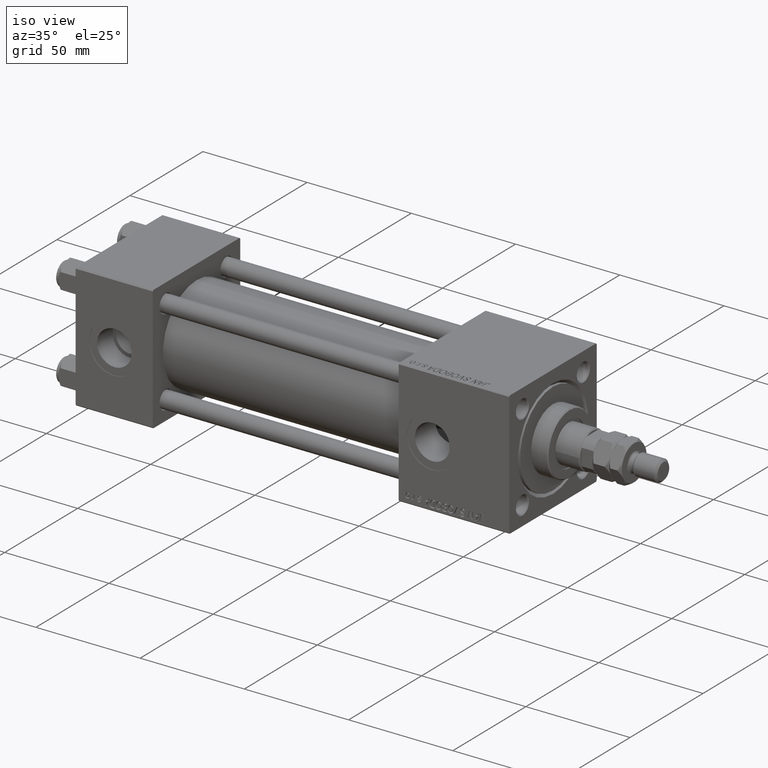
[diagram: clean part render]
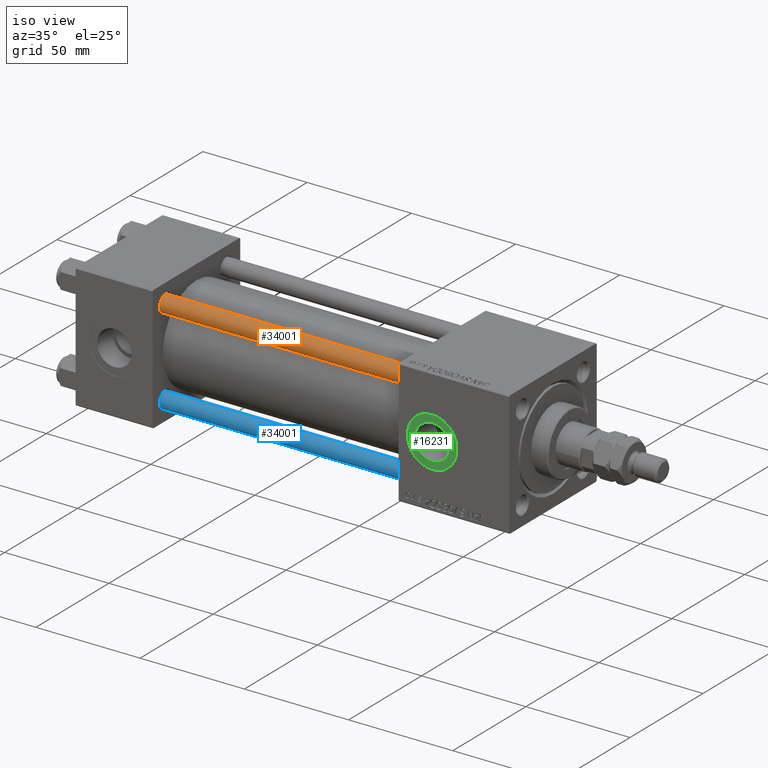
[diagram: same view with three faces highlighted in distinct colors, each labeled with its STEP entity id]
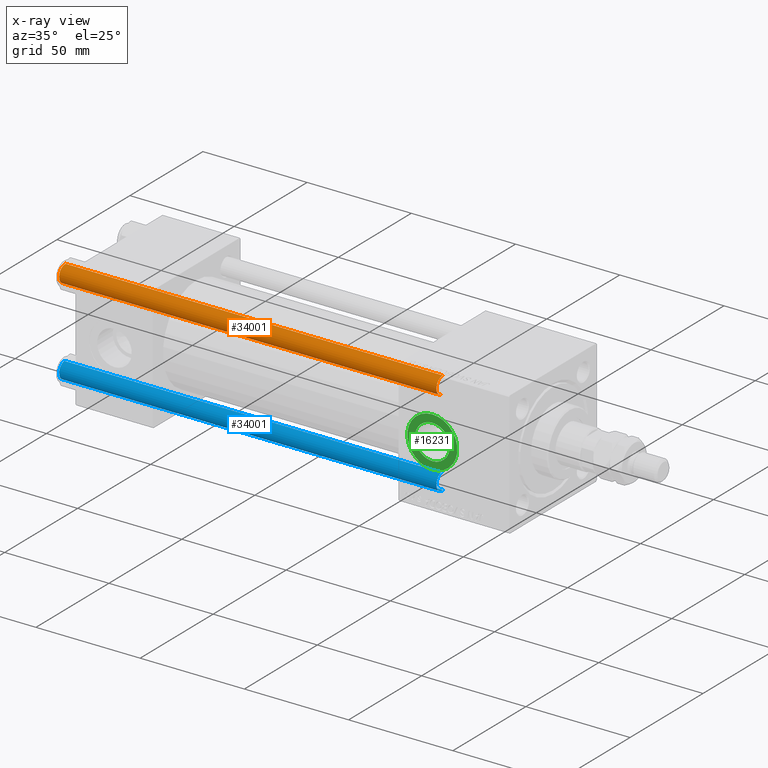
[diagram: x-ray of the same camera — body ghosted, the three highlighted faces saturated]
A machine part, iso view with three faces highlighted in distinct colors.
The next image is the same camera in x-ray (body ghosted, the three faces saturated) — at least one of them is partly hidden behind the body in this view.
Their STEP definitions:

[orange] entity #34001 — the highlighted cylindrical surface (edge-blend (fillet) strip) has radius 4 mm, axis along (1, 0, -0).
#644 = AXIS2_PLACEMENT_3D ( 'NONE', #18534, #1657, #47669 ) ;
#1657 = DIRECTION ( 'NONE',  ( -0.000000000000000000, -0.000000000000000000, -1.000000000000000000 ) ) ;
#2438 = DIRECTION ( 'NONE',  ( -0.000000000000000000, -0.000000000000000000, -1.000000000000000000 ) ) ;
#2920 = EDGE_LOOP ( 'NONE', ( #27998, #35721, #41692, #16912 ) ) ;
#4100 = LINE ( 'NONE', #50658, #37517 ) ;
#7189 = DIRECTION ( 'NONE',  ( 0.000000000000000000, 0.000000000000000000, -1.000000000000000000 ) ) ;
#13838 = CARTESIAN_POINT ( 'NONE',  ( 0.000000000000000000, 0.000000000000000000, 0.4999999999999726885 ) ) ;
#15952 = CARTESIAN_POINT ( 'NONE',  ( -4.000000000000000000, 0.000000000000000000, 181.5000000000000284 ) ) ;
#16912 = ORIENTED_EDGE ( 'NONE', *, *, #46471, .F. ) ;
#18534 = CARTESIAN_POINT ( 'NONE',  ( 0.000000000000000000, 0.000000000000000000, 182.0000000000000000 ) ) ;
#19713 = DIRECTION ( 'NONE',  ( 1.000000000000000000, 0.000000000000000000, 0.000000000000000000 ) ) ;
#22713 = AXIS2_PLACEMENT_3D ( 'NONE', #13838, #46268, #46803 ) ;
#23755 = VERTEX_POINT ( 'NONE', #15952 ) ;
#26812 = AXIS2_PLACEMENT_3D ( 'NONE', #32534, #7189, #19713 ) ;
#27998 = ORIENTED_EDGE ( 'NONE', *, *, #36018, .T. ) ;
#29486 = CARTESIAN_POINT ( 'NONE',  ( 4.000000000000000000, 4.898587196589412829E-16, 0.4999999999999726885 ) ) ;
#29993 = CARTESIAN_POINT ( 'NONE',  ( -4.000000000000000000, 0.000000000000000000, 0.4999999999999726885 ) ) ;
#32534 = CARTESIAN_POINT ( 'NONE',  ( 0.000000000000000000, 0.000000000000000000, 181.5000000000000284 ) ) ;
#32923 = VECTOR ( 'NONE', #2438, 1000.000000000000000 ) ;
#33997 = CIRCLE ( 'NONE', #22713, 4.000000000000000000 ) ;
#34001 = ADVANCED_FACE ( 'NONE', ( #34620 ), #51485, .T. ) ;
#34620 = FACE_OUTER_BOUND ( 'NONE', #2920, .T. ) ;
#35703 = EDGE_CURVE ( 'NONE', #40337, #46805, #35929, .T. ) ;
#35721 = ORIENTED_EDGE ( 'NONE', *, *, #35703, .T. ) ;
#35929 = LINE ( 'NONE', #52256, #32923 ) ;
#36018 = EDGE_CURVE ( 'NONE', #23755, #40337, #36367, .T. ) ;
#36367 = CIRCLE ( 'NONE', #26812, 4.000000000000000000 ) ;
#36689 = VERTEX_POINT ( 'NONE', #29993 ) ;
#37517 = VECTOR ( 'NONE', #37865, 1000.000000000000000 ) ;
#37800 = CARTESIAN_POINT ( 'NONE',  ( 4.000000000000000000, 4.898587196589412829E-16, 181.5000000000000284 ) ) ;
#37865 = DIRECTION ( 'NONE',  ( -0.000000000000000000, -0.000000000000000000, -1.000000000000000000 ) ) ;
#40337 = VERTEX_POINT ( 'NONE', #37800 ) ;
#41692 = ORIENTED_EDGE ( 'NONE', *, *, #51565, .T. ) ;
#46268 = DIRECTION ( 'NONE',  ( -0.000000000000000000, -0.000000000000000000, 1.000000000000000000 ) ) ;
#46471 = EDGE_CURVE ( 'NONE', #23755, #36689, #4100, .T. ) ;
#46803 = DIRECTION ( 'NONE',  ( 1.000000000000000000, 0.000000000000000000, 0.000000000000000000 ) ) ;
#46805 = VERTEX_POINT ( 'NONE', #29486 ) ;
#47669 = DIRECTION ( 'NONE',  ( -1.000000000000000000, 0.000000000000000000, 0.000000000000000000 ) ) ;
#50658 = CARTESIAN_POINT ( 'NONE',  ( -4.000000000000000000, 0.000000000000000000, 182.0000000000000000 ) ) ;
#51485 = CYLINDRICAL_SURFACE ( 'NONE', #644, 4.000000000000000000 ) ;
#51565 = EDGE_CURVE ( 'NONE', #46805, #36689, #33997, .T. ) ;
#52256 = CARTESIAN_POINT ( 'NONE',  ( 4.000000000000000000, 4.898587196589412829E-16, 182.0000000000000000 ) ) ;

[blue] entity #34001 — the highlighted cylindrical surface (edge-blend (fillet) strip) has radius 4 mm, axis along (-1, -0, -0).
#644 = AXIS2_PLACEMENT_3D ( 'NONE', #18534, #1657, #47669 ) ;
#1657 = DIRECTION ( 'NONE',  ( -0.000000000000000000, -0.000000000000000000, -1.000000000000000000 ) ) ;
#2438 = DIRECTION ( 'NONE',  ( -0.000000000000000000, -0.000000000000000000, -1.000000000000000000 ) ) ;
#2920 = EDGE_LOOP ( 'NONE', ( #27998, #35721, #41692, #16912 ) ) ;
#4100 = LINE ( 'NONE', #50658, #37517 ) ;
#7189 = DIRECTION ( 'NONE',  ( 0.000000000000000000, 0.000000000000000000, -1.000000000000000000 ) ) ;
#13838 = CARTESIAN_POINT ( 'NONE',  ( 0.000000000000000000, 0.000000000000000000, 0.4999999999999726885 ) ) ;
#15952 = CARTESIAN_POINT ( 'NONE',  ( -4.000000000000000000, 0.000000000000000000, 181.5000000000000284 ) ) ;
#16912 = ORIENTED_EDGE ( 'NONE', *, *, #46471, .F. ) ;
#18534 = CARTESIAN_POINT ( 'NONE',  ( 0.000000000000000000, 0.000000000000000000, 182.0000000000000000 ) ) ;
#19713 = DIRECTION ( 'NONE',  ( 1.000000000000000000, 0.000000000000000000, 0.000000000000000000 ) ) ;
#22713 = AXIS2_PLACEMENT_3D ( 'NONE', #13838, #46268, #46803 ) ;
#23755 = VERTEX_POINT ( 'NONE', #15952 ) ;
#26812 = AXIS2_PLACEMENT_3D ( 'NONE', #32534, #7189, #19713 ) ;
#27998 = ORIENTED_EDGE ( 'NONE', *, *, #36018, .T. ) ;
#29486 = CARTESIAN_POINT ( 'NONE',  ( 4.000000000000000000, 4.898587196589412829E-16, 0.4999999999999726885 ) ) ;
#29993 = CARTESIAN_POINT ( 'NONE',  ( -4.000000000000000000, 0.000000000000000000, 0.4999999999999726885 ) ) ;
#32534 = CARTESIAN_POINT ( 'NONE',  ( 0.000000000000000000, 0.000000000000000000, 181.5000000000000284 ) ) ;
#32923 = VECTOR ( 'NONE', #2438, 1000.000000000000000 ) ;
#33997 = CIRCLE ( 'NONE', #22713, 4.000000000000000000 ) ;
#34001 = ADVANCED_FACE ( 'NONE', ( #34620 ), #51485, .T. ) ;
#34620 = FACE_OUTER_BOUND ( 'NONE', #2920, .T. ) ;
#35703 = EDGE_CURVE ( 'NONE', #40337, #46805, #35929, .T. ) ;
#35721 = ORIENTED_EDGE ( 'NONE', *, *, #35703, .T. ) ;
#35929 = LINE ( 'NONE', #52256, #32923 ) ;
#36018 = EDGE_CURVE ( 'NONE', #23755, #40337, #36367, .T. ) ;
#36367 = CIRCLE ( 'NONE', #26812, 4.000000000000000000 ) ;
#36689 = VERTEX_POINT ( 'NONE', #29993 ) ;
#37517 = VECTOR ( 'NONE', #37865, 1000.000000000000000 ) ;
#37800 = CARTESIAN_POINT ( 'NONE',  ( 4.000000000000000000, 4.898587196589412829E-16, 181.5000000000000284 ) ) ;
#37865 = DIRECTION ( 'NONE',  ( -0.000000000000000000, -0.000000000000000000, -1.000000000000000000 ) ) ;
#40337 = VERTEX_POINT ( 'NONE', #37800 ) ;
#41692 = ORIENTED_EDGE ( 'NONE', *, *, #51565, .T. ) ;
#46268 = DIRECTION ( 'NONE',  ( -0.000000000000000000, -0.000000000000000000, 1.000000000000000000 ) ) ;
#46471 = EDGE_CURVE ( 'NONE', #23755, #36689, #4100, .T. ) ;
#46803 = DIRECTION ( 'NONE',  ( 1.000000000000000000, 0.000000000000000000, 0.000000000000000000 ) ) ;
#46805 = VERTEX_POINT ( 'NONE', #29486 ) ;
#47669 = DIRECTION ( 'NONE',  ( -1.000000000000000000, 0.000000000000000000, 0.000000000000000000 ) ) ;
#50658 = CARTESIAN_POINT ( 'NONE',  ( -4.000000000000000000, 0.000000000000000000, 182.0000000000000000 ) ) ;
#51485 = CYLINDRICAL_SURFACE ( 'NONE', #644, 4.000000000000000000 ) ;
#51565 = EDGE_CURVE ( 'NONE', #46805, #36689, #33997, .T. ) ;
#52256 = CARTESIAN_POINT ( 'NONE',  ( 4.000000000000000000, 4.898587196589412829E-16, 182.0000000000000000 ) ) ;

[green] entity #16231 — the highlighted planar face has unit normal (0, -1, -0).
#514 = VERTEX_POINT ( 'NONE', #37104 ) ;
#595 = CIRCLE ( 'NONE', #39722, 12.00000000000000533 ) ;
#1878 = CARTESIAN_POINT ( 'NONE',  ( 170.9999999999999716, -29.80000000000000071, 8.329999999999998295 ) ) ;
#3831 = DIRECTION ( 'NONE',  ( 0.000000000000000000, 0.000000000000000000, -1.000000000000000000 ) ) ;
#3925 = ORIENTED_EDGE ( 'NONE', *, *, #15461, .F. ) ;
#4116 = DIRECTION ( 'NONE',  ( 0.000000000000000000, -1.000000000000000000, -8.673617379884036705E-17 ) ) ;
#4451 = ORIENTED_EDGE ( 'NONE', *, *, #24203, .F. ) ;
#7240 = AXIS2_PLACEMENT_3D ( 'NONE', #10038, #9497, #10305 ) ;
#8374 = EDGE_CURVE ( 'NONE', #11060, #514, #38536, .T. ) ;
#9497 = DIRECTION ( 'NONE',  ( 0.000000000000000000, -1.000000000000000000, -8.673617379884036705E-17 ) ) ;
#10038 = CARTESIAN_POINT ( 'NONE',  ( 170.9999999999999716, -29.80000000000000071, 1.734723475976807403E-17 ) ) ;
#10104 = CIRCLE ( 'NONE', #31008, 8.329999999999998295 ) ;
#10305 = DIRECTION ( 'NONE',  ( 0.000000000000000000, 0.000000000000000000, -1.000000000000000000 ) ) ;
#11003 = CARTESIAN_POINT ( 'NONE',  ( 170.9999999999999716, -29.80000000000000071, -8.329999999999998295 ) ) ;
#11060 = VERTEX_POINT ( 'NONE', #19824 ) ;
#12079 = CARTESIAN_POINT ( 'NONE',  ( 170.9999999999999716, -29.80000000000000071, 1.734723475976807403E-17 ) ) ;
#14156 = CARTESIAN_POINT ( 'NONE',  ( 170.9999999999999716, -29.80000000000000071, 1.734723475976808635E-17 ) ) ;
#15461 = EDGE_CURVE ( 'NONE', #38123, #17292, #10104, .T. ) ;
#16168 = FACE_OUTER_BOUND ( 'NONE', #47856, .T. ) ;
#16231 = ADVANCED_FACE ( 'NONE', ( #40684, #16168 ), #36874, .T. ) ;
#16589 = EDGE_CURVE ( 'NONE', #514, #11060, #595, .T. ) ;
#16699 = DIRECTION ( 'NONE',  ( 0.000000000000000000, 8.673617379884036705E-17, -1.000000000000000000 ) ) ;
#17292 = VERTEX_POINT ( 'NONE', #11003 ) ;
#19824 = CARTESIAN_POINT ( 'NONE',  ( 170.9999999999999716, -29.80000000000000071, 12.00000000000000533 ) ) ;
#24203 = EDGE_CURVE ( 'NONE', #17292, #38123, #53471, .T. ) ;
#25972 = ORIENTED_EDGE ( 'NONE', *, *, #8374, .T. ) ;
#27491 = DIRECTION ( 'NONE',  ( 0.000000000000000000, -1.000000000000000000, -8.673617379884036705E-17 ) ) ;
#27840 = DIRECTION ( 'NONE',  ( 0.000000000000000000, 0.000000000000000000, -1.000000000000000000 ) ) ;
#29442 = EDGE_LOOP ( 'NONE', ( #4451, #3925 ) ) ;
#30486 = ORIENTED_EDGE ( 'NONE', *, *, #16589, .T. ) ;
#31008 = AXIS2_PLACEMENT_3D ( 'NONE', #37057, #41136, #3831 ) ;
#33270 = CARTESIAN_POINT ( 'NONE',  ( 170.9999999999999716, -29.80000000000000071, 1.734723475976807403E-17 ) ) ;
#35212 = AXIS2_PLACEMENT_3D ( 'NONE', #14156, #27491, #48179 ) ;
#36874 = PLANE ( 'NONE',  #45838 ) ;
#37057 = CARTESIAN_POINT ( 'NONE',  ( 170.9999999999999716, -29.80000000000000071, 1.734723475976808635E-17 ) ) ;
#37104 = CARTESIAN_POINT ( 'NONE',  ( 170.9999999999999716, -29.80000000000000071, -12.00000000000000533 ) ) ;
#38123 = VERTEX_POINT ( 'NONE', #1878 ) ;
#38536 = CIRCLE ( 'NONE', #7240, 12.00000000000000533 ) ;
#39722 = AXIS2_PLACEMENT_3D ( 'NONE', #33270, #4116, #27840 ) ;
#40684 = FACE_BOUND ( 'NONE', #29442, .T. ) ;
#41136 = DIRECTION ( 'NONE',  ( 0.000000000000000000, -1.000000000000000000, -8.673617379884036705E-17 ) ) ;
#45838 = AXIS2_PLACEMENT_3D ( 'NONE', #12079, #53737, #16699 ) ;
#47856 = EDGE_LOOP ( 'NONE', ( #30486, #25972 ) ) ;
#48179 = DIRECTION ( 'NONE',  ( 0.000000000000000000, 0.000000000000000000, -1.000000000000000000 ) ) ;
#53471 = CIRCLE ( 'NONE', #35212, 8.329999999999998295 ) ;
#53737 = DIRECTION ( 'NONE',  ( 0.000000000000000000, -1.000000000000000000, -8.673617379884036705E-17 ) ) ;